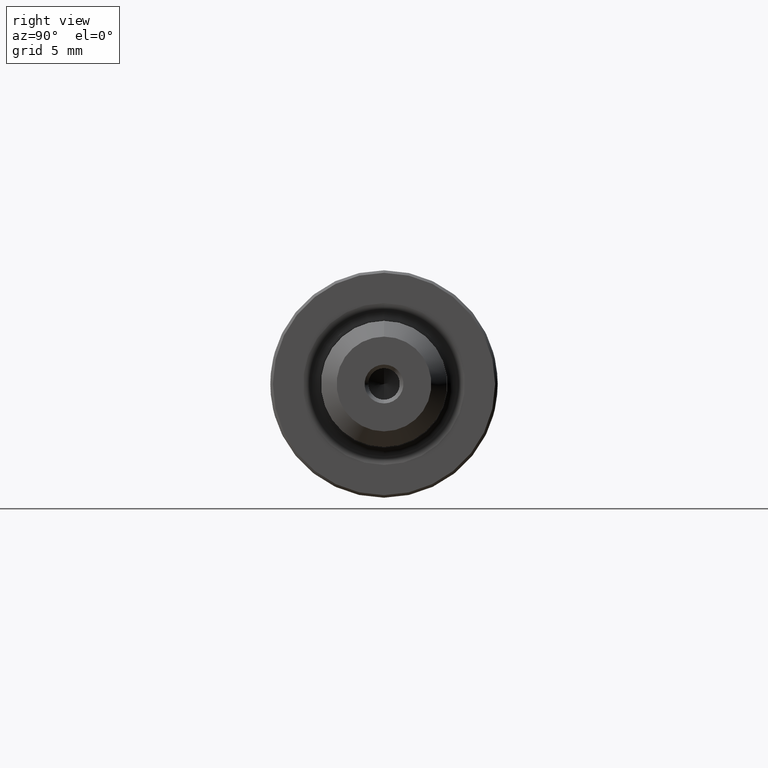
[diagram: clean part render]
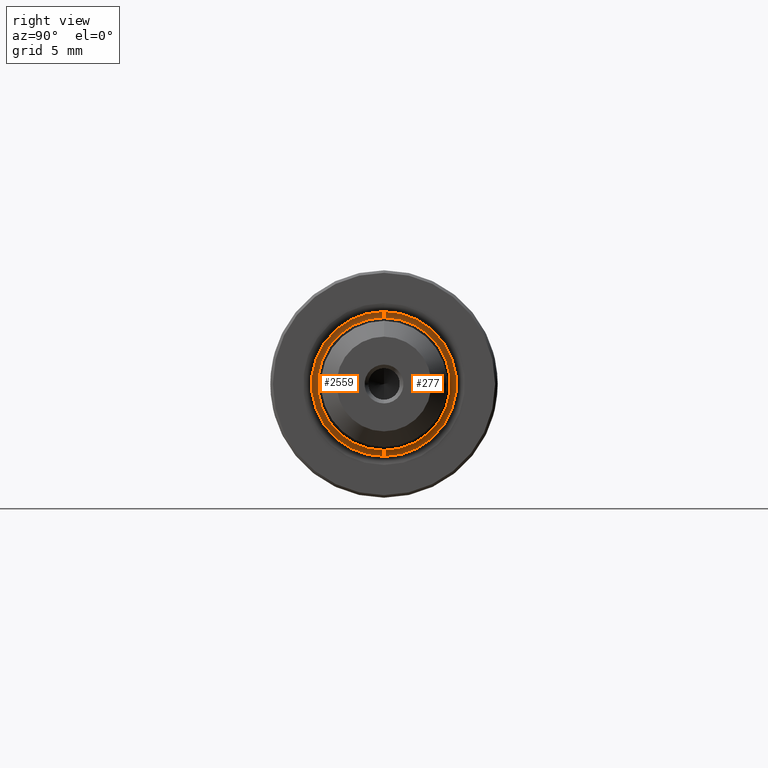
[diagram: same view with one multi-face feature highlighted, each face labeled with its STEP entity id]
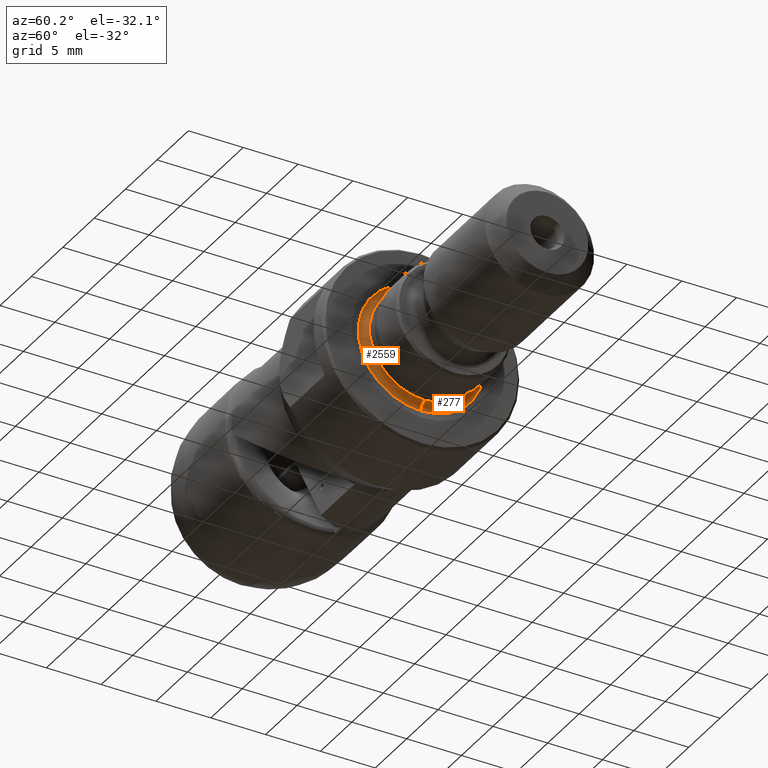
[diagram: same view with one multi-face feature highlighted, each face labeled with its STEP entity id]
A machine part, right view. The highlighted faces form ONE feature: a constant-radius fillet chain: 2 tangent blend faces with common blend radius 0.6 mm. The faces share edges in the B-rep.
A second angle (auxiliary view) of the same feature is appended — it is thin or edge-on in the first view.
Their STEP definitions:
[1] entity #2559 (Torus):
#30 = AXIS2_PLACEMENT_3D ( 'NONE', #3526, #1618, #1357 ) ;
#61 = CARTESIAN_POINT ( 'NONE',  ( 32.22272115875505705, 7.431767214657725651E-16, 5.733503860576043998 ) ) ;
#132 = AXIS2_PLACEMENT_3D ( 'NONE', #3849, #1124, #524 ) ;
#153 = CARTESIAN_POINT ( 'NONE',  ( 32.81688200000000677, 0.0000000000000000000, 5.650000000000000355 ) ) ;
#164 = CARTESIAN_POINT ( 'NONE',  ( 32.81688200000000677, 0.0000000000000000000, 0.0000000000000000000 ) ) ;
#224 = VERTEX_POINT ( 'NONE', #2824 ) ;
#408 = DIRECTION ( 'NONE',  ( 0.0000000000000000000, 0.0000000000000000000, -1.000000000000000000 ) ) ;
#444 = FACE_OUTER_BOUND ( 'NONE', #2237, .T. ) ;
#458 = EDGE_CURVE ( 'NONE', #3412, #1074, #3290, .T. ) ;
#460 = DIRECTION ( 'NONE',  ( 0.0000000000000000000, 0.0000000000000000000, 1.000000000000000000 ) ) ;
#524 = DIRECTION ( 'NONE',  ( 0.0000000000000000000, 0.0000000000000000000, 1.000000000000000000 ) ) ;
#547 = CARTESIAN_POINT ( 'NONE',  ( 32.81688200000000677, 6.919254415182546323E-16, -5.650000000000000355 ) ) ;
#609 = CARTESIAN_POINT ( 'NONE',  ( 32.81688200000000677, 0.0000000000000000000, 5.050000000000000711 ) ) ;
#991 = TOROIDAL_SURFACE ( 'NONE', #2536, 5.650000000000000355, 0.6000000000000015321 ) ;
#1022 = DIRECTION ( 'NONE',  ( 0.0000000000000000000, -1.000000000000000000, 0.0000000000000000000 ) ) ;
#1074 = VERTEX_POINT ( 'NONE', #609 ) ;
#1124 = DIRECTION ( 'NONE',  ( -1.000000000000000000, 0.0000000000000000000, 0.0000000000000000000 ) ) ;
#1194 = CIRCLE ( 'NONE', #132, 5.050000000000000711 ) ;
#1357 = DIRECTION ( 'NONE',  ( 0.0000000000000000000, 0.0000000000000000000, 1.000000000000000000 ) ) ;
#1449 = DIRECTION ( 'NONE',  ( 0.0000000000000000000, 1.000000000000000000, 1.224646799147353207E-16 ) ) ;
#1599 = AXIS2_PLACEMENT_3D ( 'NONE', #153, #1022, #408 ) ;
#1618 = DIRECTION ( 'NONE',  ( -1.000000000000000000, 0.0000000000000000000, 0.0000000000000000000 ) ) ;
#1654 = DIRECTION ( 'NONE',  ( -1.000000000000000000, 0.0000000000000000000, 0.0000000000000000000 ) ) ;
#1719 = DIRECTION ( 'NONE',  ( 0.0000000000000000000, -1.224646799147353207E-16, 1.000000000000000000 ) ) ;
#1849 = EDGE_CURVE ( 'NONE', #224, #1074, #1194, .T. ) ;
#2080 = VERTEX_POINT ( 'NONE', #3891 ) ;
#2211 = ORIENTED_EDGE ( 'NONE', *, *, #1849, .T. ) ;
#2237 = EDGE_LOOP ( 'NONE', ( #2796, #3027, #2211, #3706 ) ) ;
#2536 = AXIS2_PLACEMENT_3D ( 'NONE', #164, #1654, #460 ) ;
#2559 = ADVANCED_FACE ( 'NONE', ( #444 ), #991, .F. ) ;
#2796 = ORIENTED_EDGE ( 'NONE', *, *, #3744, .F. ) ;
#2824 = CARTESIAN_POINT ( 'NONE',  ( 32.81688200000000677, 6.602991743223789857E-16, -5.050000000000000711 ) ) ;
#3027 = ORIENTED_EDGE ( 'NONE', *, *, #3854, .T. ) ;
#3242 = AXIS2_PLACEMENT_3D ( 'NONE', #547, #1449, #1719 ) ;
#3290 = CIRCLE ( 'NONE', #1599, 0.6000000000000015321 ) ;
#3412 = VERTEX_POINT ( 'NONE', #61 ) ;
#3427 = CIRCLE ( 'NONE', #3242, 0.6000000000000015321 ) ;
#3526 = CARTESIAN_POINT ( 'NONE',  ( 32.22272115875505705, 0.0000000000000000000, 0.0000000000000000000 ) ) ;
#3686 = CIRCLE ( 'NONE', #30, 5.733503860576043998 ) ;
#3706 = ORIENTED_EDGE ( 'NONE', *, *, #458, .F. ) ;
#3744 = EDGE_CURVE ( 'NONE', #2080, #3412, #3686, .T. ) ;
#3849 = CARTESIAN_POINT ( 'NONE',  ( 32.81688200000000677, 0.0000000000000000000, 0.0000000000000000000 ) ) ;
#3854 = EDGE_CURVE ( 'NONE', #2080, #224, #3427, .T. ) ;
#3891 = CARTESIAN_POINT ( 'NONE',  ( 32.22272115875505705, 0.0000000000000000000, -5.733503860576043998 ) ) ;
[2] entity #277 (Torus):
#61 = CARTESIAN_POINT ( 'NONE',  ( 32.22272115875505705, 7.431767214657725651E-16, 5.733503860576043998 ) ) ;
#74 = DIRECTION ( 'NONE',  ( -1.000000000000000000, 0.0000000000000000000, 0.0000000000000000000 ) ) ;
#153 = CARTESIAN_POINT ( 'NONE',  ( 32.81688200000000677, 0.0000000000000000000, 5.650000000000000355 ) ) ;
#183 = EDGE_CURVE ( 'NONE', #1074, #224, #3498, .T. ) ;
#224 = VERTEX_POINT ( 'NONE', #2824 ) ;
#277 = ADVANCED_FACE ( 'NONE', ( #1274 ), #2903, .F. ) ;
#403 = DIRECTION ( 'NONE',  ( -1.000000000000000000, 0.0000000000000000000, 0.0000000000000000000 ) ) ;
#408 = DIRECTION ( 'NONE',  ( 0.0000000000000000000, 0.0000000000000000000, -1.000000000000000000 ) ) ;
#458 = EDGE_CURVE ( 'NONE', #3412, #1074, #3290, .T. ) ;
#501 = EDGE_CURVE ( 'NONE', #3412, #2080, #834, .T. ) ;
#547 = CARTESIAN_POINT ( 'NONE',  ( 32.81688200000000677, 6.919254415182546323E-16, -5.650000000000000355 ) ) ;
#574 = ORIENTED_EDGE ( 'NONE', *, *, #3854, .F. ) ;
#609 = CARTESIAN_POINT ( 'NONE',  ( 32.81688200000000677, 0.0000000000000000000, 5.050000000000000711 ) ) ;
#834 = CIRCLE ( 'NONE', #1346, 5.733503860576043998 ) ;
#856 = ORIENTED_EDGE ( 'NONE', *, *, #183, .T. ) ;
#863 = EDGE_LOOP ( 'NONE', ( #574, #3495, #3328, #856 ) ) ;
#984 = DIRECTION ( 'NONE',  ( 0.0000000000000000000, 0.0000000000000000000, 1.000000000000000000 ) ) ;
#1022 = DIRECTION ( 'NONE',  ( 0.0000000000000000000, -1.000000000000000000, 0.0000000000000000000 ) ) ;
#1074 = VERTEX_POINT ( 'NONE', #609 ) ;
#1274 = FACE_OUTER_BOUND ( 'NONE', #863, .T. ) ;
#1346 = AXIS2_PLACEMENT_3D ( 'NONE', #3469, #2820, #3173 ) ;
#1449 = DIRECTION ( 'NONE',  ( 0.0000000000000000000, 1.000000000000000000, 1.224646799147353207E-16 ) ) ;
#1463 = AXIS2_PLACEMENT_3D ( 'NONE', #3178, #74, #984 ) ;
#1599 = AXIS2_PLACEMENT_3D ( 'NONE', #153, #1022, #408 ) ;
#1719 = DIRECTION ( 'NONE',  ( 0.0000000000000000000, -1.224646799147353207E-16, 1.000000000000000000 ) ) ;
#1746 = AXIS2_PLACEMENT_3D ( 'NONE', #1929, #403, #2837 ) ;
#1929 = CARTESIAN_POINT ( 'NONE',  ( 32.81688200000000677, 0.0000000000000000000, 0.0000000000000000000 ) ) ;
#2080 = VERTEX_POINT ( 'NONE', #3891 ) ;
#2820 = DIRECTION ( 'NONE',  ( -1.000000000000000000, 0.0000000000000000000, 0.0000000000000000000 ) ) ;
#2824 = CARTESIAN_POINT ( 'NONE',  ( 32.81688200000000677, 6.602991743223789857E-16, -5.050000000000000711 ) ) ;
#2837 = DIRECTION ( 'NONE',  ( 0.0000000000000000000, 0.0000000000000000000, 1.000000000000000000 ) ) ;
#2903 = TOROIDAL_SURFACE ( 'NONE', #1463, 5.650000000000000355, 0.6000000000000015321 ) ;
#3173 = DIRECTION ( 'NONE',  ( 0.0000000000000000000, 0.0000000000000000000, 1.000000000000000000 ) ) ;
#3178 = CARTESIAN_POINT ( 'NONE',  ( 32.81688200000000677, 0.0000000000000000000, 0.0000000000000000000 ) ) ;
#3242 = AXIS2_PLACEMENT_3D ( 'NONE', #547, #1449, #1719 ) ;
#3290 = CIRCLE ( 'NONE', #1599, 0.6000000000000015321 ) ;
#3328 = ORIENTED_EDGE ( 'NONE', *, *, #458, .T. ) ;
#3412 = VERTEX_POINT ( 'NONE', #61 ) ;
#3427 = CIRCLE ( 'NONE', #3242, 0.6000000000000015321 ) ;
#3469 = CARTESIAN_POINT ( 'NONE',  ( 32.22272115875505705, 0.0000000000000000000, 0.0000000000000000000 ) ) ;
#3495 = ORIENTED_EDGE ( 'NONE', *, *, #501, .F. ) ;
#3498 = CIRCLE ( 'NONE', #1746, 5.050000000000000711 ) ;
#3854 = EDGE_CURVE ( 'NONE', #2080, #224, #3427, .T. ) ;
#3891 = CARTESIAN_POINT ( 'NONE',  ( 32.22272115875505705, 0.0000000000000000000, -5.733503860576043998 ) ) ;